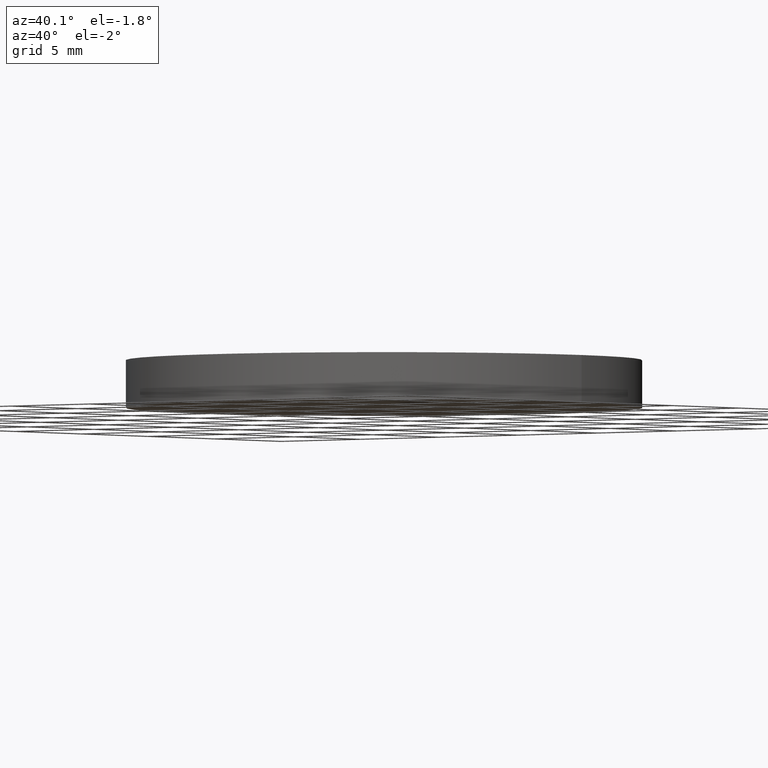
[diagram: clean part render]
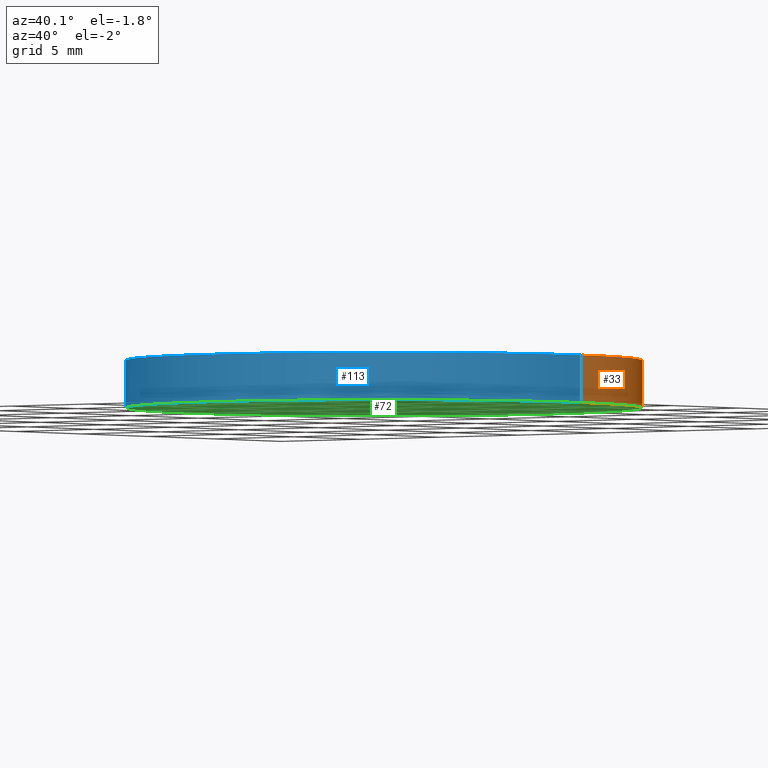
[diagram: same view with three faces highlighted in distinct colors, each labeled with its STEP entity id]
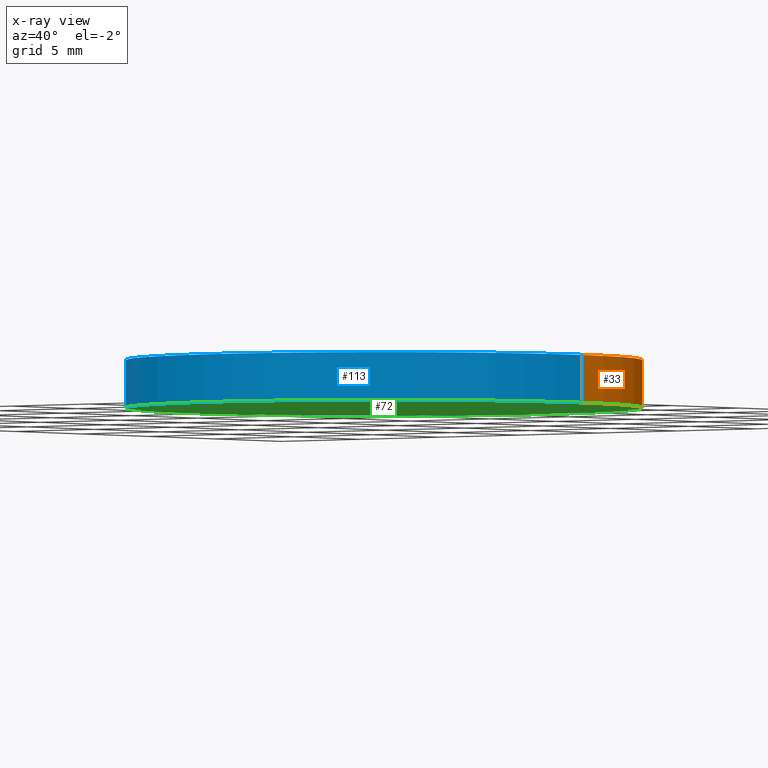
[diagram: x-ray of the same camera — body ghosted, the three highlighted faces saturated]
A machine part, auxiliary view with three faces highlighted in distinct colors.
The next image is the same camera in x-ray (body ghosted, the three faces saturated) — at least one of them is partly hidden behind the body in this view.
Their STEP definitions:

[orange] entity #33 — the highlighted cylindrical surface (partial cylindrical patch) has radius 12.5 mm, axis along (-0, -0, -1).
#1 = CARTESIAN_POINT ( 'NONE',  ( 101.2479357758850800, 61.56324183452659300, 2.299999999999999800 ) ) ;
#10 = VERTEX_POINT ( 'NONE', #11 ) ;
#11 = CARTESIAN_POINT ( 'NONE',  ( 113.7479357758850800, 61.56324183452659300, 2.299999999999999800 ) ) ;
#17 = CYLINDRICAL_SURFACE ( 'NONE', #134, 12.49999999999999600 ) ;
#21 = EDGE_LOOP ( 'NONE', ( #35, #43, #130, #123 ) ) ;
#22 = DIRECTION ( 'NONE',  ( -0.0000000000000000000, -0.0000000000000000000, -1.000000000000000000 ) ) ;
#26 = VECTOR ( 'NONE', #38, 1000.000000000000000 ) ;
#33 = ADVANCED_FACE ( 'NONE', ( #109 ), #17, .T. ) ;
#35 = ORIENTED_EDGE ( 'NONE', *, *, #42, .F. ) ;
#38 = DIRECTION ( 'NONE',  ( -0.0000000000000000000, -0.0000000000000000000, -1.000000000000000000 ) ) ;
#42 = EDGE_CURVE ( 'NONE', #10, #48, #81, .T. ) ;
#43 = ORIENTED_EDGE ( 'NONE', *, *, #135, .T. ) ;
#48 = VERTEX_POINT ( 'NONE', #117 ) ;
#50 = CARTESIAN_POINT ( 'NONE',  ( 88.74793577588509700, 61.56324183452659300, 2.299999999999999800 ) ) ;
#54 = LINE ( 'NONE', #50, #138 ) ;
#56 = DIRECTION ( 'NONE',  ( 0.0000000000000000000, 0.0000000000000000000, 1.000000000000000000 ) ) ;
#64 = EDGE_CURVE ( 'NONE', #124, #99, #111, .T. ) ;
#70 = AXIS2_PLACEMENT_3D ( 'NONE', #102, #56, #86 ) ;
#74 = CARTESIAN_POINT ( 'NONE',  ( 88.74793577588509700, 61.56324183452659300, 0.0000000000000000000 ) ) ;
#78 = AXIS2_PLACEMENT_3D ( 'NONE', #137, #129, #140 ) ;
#81 = CIRCLE ( 'NONE', #78, 12.49999999999999600 ) ;
#82 = EDGE_CURVE ( 'NONE', #48, #99, #54, .T. ) ;
#84 = CARTESIAN_POINT ( 'NONE',  ( 113.7479357758850800, 61.56324183452659300, 2.299999999999999800 ) ) ;
#86 = DIRECTION ( 'NONE',  ( 1.000000000000000000, 0.0000000000000000000, 0.0000000000000000000 ) ) ;
#99 = VERTEX_POINT ( 'NONE', #74 ) ;
#102 = CARTESIAN_POINT ( 'NONE',  ( 101.2479357758850800, 61.56324183452659300, 0.0000000000000000000 ) ) ;
#103 = CARTESIAN_POINT ( 'NONE',  ( 113.7479357758850800, 61.56324183452659300, 0.0000000000000000000 ) ) ;
#109 = FACE_OUTER_BOUND ( 'NONE', #21, .T. ) ;
#110 = LINE ( 'NONE', #84, #26 ) ;
#111 = CIRCLE ( 'NONE', #70, 12.49999999999999600 ) ;
#117 = CARTESIAN_POINT ( 'NONE',  ( 88.74793577588509700, 61.56324183452659300, 2.299999999999999800 ) ) ;
#121 = DIRECTION ( 'NONE',  ( -1.000000000000000000, 0.0000000000000000000, 0.0000000000000000000 ) ) ;
#123 = ORIENTED_EDGE ( 'NONE', *, *, #82, .F. ) ;
#124 = VERTEX_POINT ( 'NONE', #103 ) ;
#127 = DIRECTION ( 'NONE',  ( -0.0000000000000000000, -0.0000000000000000000, -1.000000000000000000 ) ) ;
#129 = DIRECTION ( 'NONE',  ( 0.0000000000000000000, 0.0000000000000000000, 1.000000000000000000 ) ) ;
#130 = ORIENTED_EDGE ( 'NONE', *, *, #64, .T. ) ;
#134 = AXIS2_PLACEMENT_3D ( 'NONE', #1, #22, #121 ) ;
#135 = EDGE_CURVE ( 'NONE', #10, #124, #110, .T. ) ;
#137 = CARTESIAN_POINT ( 'NONE',  ( 101.2479357758850800, 61.56324183452659300, 2.299999999999999800 ) ) ;
#138 = VECTOR ( 'NONE', #127, 1000.000000000000000 ) ;
#140 = DIRECTION ( 'NONE',  ( 1.000000000000000000, 0.0000000000000000000, 0.0000000000000000000 ) ) ;

[blue] entity #113 — the highlighted cylindrical surface (partial cylindrical patch) has radius 12.5 mm, axis along (-0, -0, -1).
#5 = CYLINDRICAL_SURFACE ( 'NONE', #131, 12.49999999999999600 ) ;
#7 = ORIENTED_EDGE ( 'NONE', *, *, #19, .T. ) ;
#10 = VERTEX_POINT ( 'NONE', #11 ) ;
#11 = CARTESIAN_POINT ( 'NONE',  ( 113.7479357758850800, 61.56324183452659300, 2.299999999999999800 ) ) ;
#18 = ORIENTED_EDGE ( 'NONE', *, *, #135, .F. ) ;
#19 = EDGE_CURVE ( 'NONE', #99, #124, #59, .T. ) ;
#20 = CARTESIAN_POINT ( 'NONE',  ( 101.2479357758850800, 61.56324183452659300, 2.299999999999999800 ) ) ;
#26 = VECTOR ( 'NONE', #38, 1000.000000000000000 ) ;
#30 = AXIS2_PLACEMENT_3D ( 'NONE', #120, #89, #87 ) ;
#34 = DIRECTION ( 'NONE',  ( -1.000000000000000000, 0.0000000000000000000, 0.0000000000000000000 ) ) ;
#38 = DIRECTION ( 'NONE',  ( -0.0000000000000000000, -0.0000000000000000000, -1.000000000000000000 ) ) ;
#48 = VERTEX_POINT ( 'NONE', #117 ) ;
#50 = CARTESIAN_POINT ( 'NONE',  ( 88.74793577588509700, 61.56324183452659300, 2.299999999999999800 ) ) ;
#54 = LINE ( 'NONE', #50, #138 ) ;
#58 = DIRECTION ( 'NONE',  ( 1.000000000000000000, 0.0000000000000000000, 0.0000000000000000000 ) ) ;
#59 = CIRCLE ( 'NONE', #68, 12.49999999999999600 ) ;
#66 = CARTESIAN_POINT ( 'NONE',  ( 101.2479357758850800, 61.56324183452659300, 0.0000000000000000000 ) ) ;
#68 = AXIS2_PLACEMENT_3D ( 'NONE', #66, #105, #58 ) ;
#74 = CARTESIAN_POINT ( 'NONE',  ( 88.74793577588509700, 61.56324183452659300, 0.0000000000000000000 ) ) ;
#75 = CIRCLE ( 'NONE', #30, 12.49999999999999600 ) ;
#82 = EDGE_CURVE ( 'NONE', #48, #99, #54, .T. ) ;
#84 = CARTESIAN_POINT ( 'NONE',  ( 113.7479357758850800, 61.56324183452659300, 2.299999999999999800 ) ) ;
#87 = DIRECTION ( 'NONE',  ( 1.000000000000000000, 0.0000000000000000000, 0.0000000000000000000 ) ) ;
#89 = DIRECTION ( 'NONE',  ( 0.0000000000000000000, 0.0000000000000000000, 1.000000000000000000 ) ) ;
#92 = EDGE_LOOP ( 'NONE', ( #18, #126, #93, #7 ) ) ;
#93 = ORIENTED_EDGE ( 'NONE', *, *, #82, .T. ) ;
#99 = VERTEX_POINT ( 'NONE', #74 ) ;
#101 = DIRECTION ( 'NONE',  ( -0.0000000000000000000, -0.0000000000000000000, -1.000000000000000000 ) ) ;
#103 = CARTESIAN_POINT ( 'NONE',  ( 113.7479357758850800, 61.56324183452659300, 0.0000000000000000000 ) ) ;
#105 = DIRECTION ( 'NONE',  ( 0.0000000000000000000, 0.0000000000000000000, 1.000000000000000000 ) ) ;
#110 = LINE ( 'NONE', #84, #26 ) ;
#113 = ADVANCED_FACE ( 'NONE', ( #139 ), #5, .T. ) ;
#116 = EDGE_CURVE ( 'NONE', #48, #10, #75, .T. ) ;
#117 = CARTESIAN_POINT ( 'NONE',  ( 88.74793577588509700, 61.56324183452659300, 2.299999999999999800 ) ) ;
#120 = CARTESIAN_POINT ( 'NONE',  ( 101.2479357758850800, 61.56324183452659300, 2.299999999999999800 ) ) ;
#124 = VERTEX_POINT ( 'NONE', #103 ) ;
#126 = ORIENTED_EDGE ( 'NONE', *, *, #116, .F. ) ;
#127 = DIRECTION ( 'NONE',  ( -0.0000000000000000000, -0.0000000000000000000, -1.000000000000000000 ) ) ;
#131 = AXIS2_PLACEMENT_3D ( 'NONE', #20, #101, #34 ) ;
#135 = EDGE_CURVE ( 'NONE', #10, #124, #110, .T. ) ;
#138 = VECTOR ( 'NONE', #127, 1000.000000000000000 ) ;
#139 = FACE_OUTER_BOUND ( 'NONE', #92, .T. ) ;

[green] entity #72 — the highlighted planar face has unit normal (0, 0, 1).
#4 = AXIS2_PLACEMENT_3D ( 'NONE', #55, #115, #119 ) ;
#19 = EDGE_CURVE ( 'NONE', #99, #124, #59, .T. ) ;
#32 = FACE_OUTER_BOUND ( 'NONE', #112, .T. ) ;
#55 = CARTESIAN_POINT ( 'NONE',  ( 101.2479357758850800, 61.56324183452659300, 0.0000000000000000000 ) ) ;
#56 = DIRECTION ( 'NONE',  ( 0.0000000000000000000, 0.0000000000000000000, 1.000000000000000000 ) ) ;
#58 = DIRECTION ( 'NONE',  ( 1.000000000000000000, 0.0000000000000000000, 0.0000000000000000000 ) ) ;
#59 = CIRCLE ( 'NONE', #68, 12.49999999999999600 ) ;
#64 = EDGE_CURVE ( 'NONE', #124, #99, #111, .T. ) ;
#66 = CARTESIAN_POINT ( 'NONE',  ( 101.2479357758850800, 61.56324183452659300, 0.0000000000000000000 ) ) ;
#68 = AXIS2_PLACEMENT_3D ( 'NONE', #66, #105, #58 ) ;
#70 = AXIS2_PLACEMENT_3D ( 'NONE', #102, #56, #86 ) ;
#72 = ADVANCED_FACE ( 'NONE', ( #32 ), #95, .F. ) ;
#74 = CARTESIAN_POINT ( 'NONE',  ( 88.74793577588509700, 61.56324183452659300, 0.0000000000000000000 ) ) ;
#86 = DIRECTION ( 'NONE',  ( 1.000000000000000000, 0.0000000000000000000, 0.0000000000000000000 ) ) ;
#95 = PLANE ( 'NONE',  #4 ) ;
#99 = VERTEX_POINT ( 'NONE', #74 ) ;
#100 = ORIENTED_EDGE ( 'NONE', *, *, #19, .F. ) ;
#102 = CARTESIAN_POINT ( 'NONE',  ( 101.2479357758850800, 61.56324183452659300, 0.0000000000000000000 ) ) ;
#103 = CARTESIAN_POINT ( 'NONE',  ( 113.7479357758850800, 61.56324183452659300, 0.0000000000000000000 ) ) ;
#105 = DIRECTION ( 'NONE',  ( 0.0000000000000000000, 0.0000000000000000000, 1.000000000000000000 ) ) ;
#111 = CIRCLE ( 'NONE', #70, 12.49999999999999600 ) ;
#112 = EDGE_LOOP ( 'NONE', ( #100, #128 ) ) ;
#115 = DIRECTION ( 'NONE',  ( 0.0000000000000000000, 0.0000000000000000000, 1.000000000000000000 ) ) ;
#119 = DIRECTION ( 'NONE',  ( 1.000000000000000000, 0.0000000000000000000, -0.0000000000000000000 ) ) ;
#124 = VERTEX_POINT ( 'NONE', #103 ) ;
#128 = ORIENTED_EDGE ( 'NONE', *, *, #64, .F. ) ;